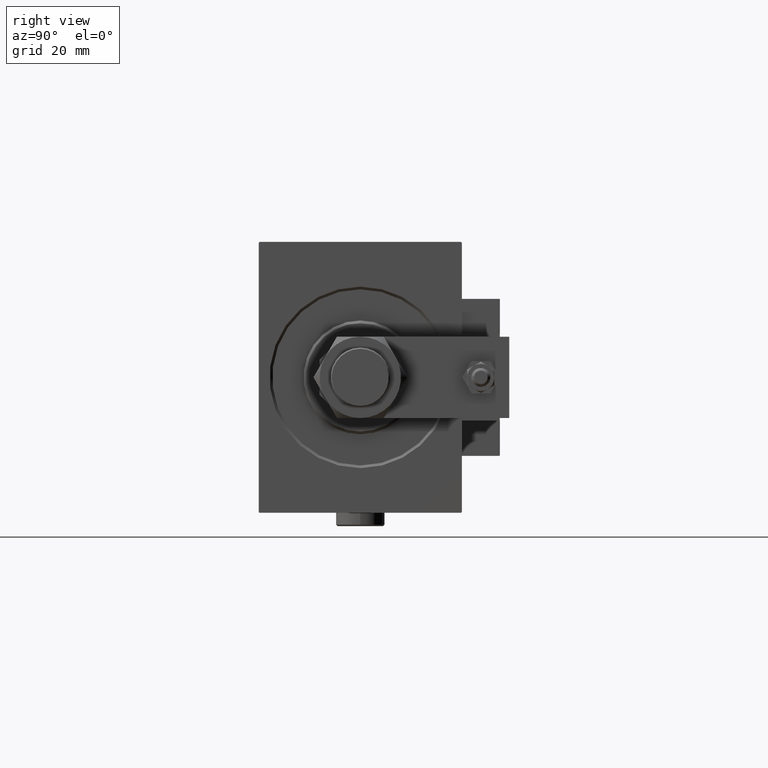
[diagram: clean part render]
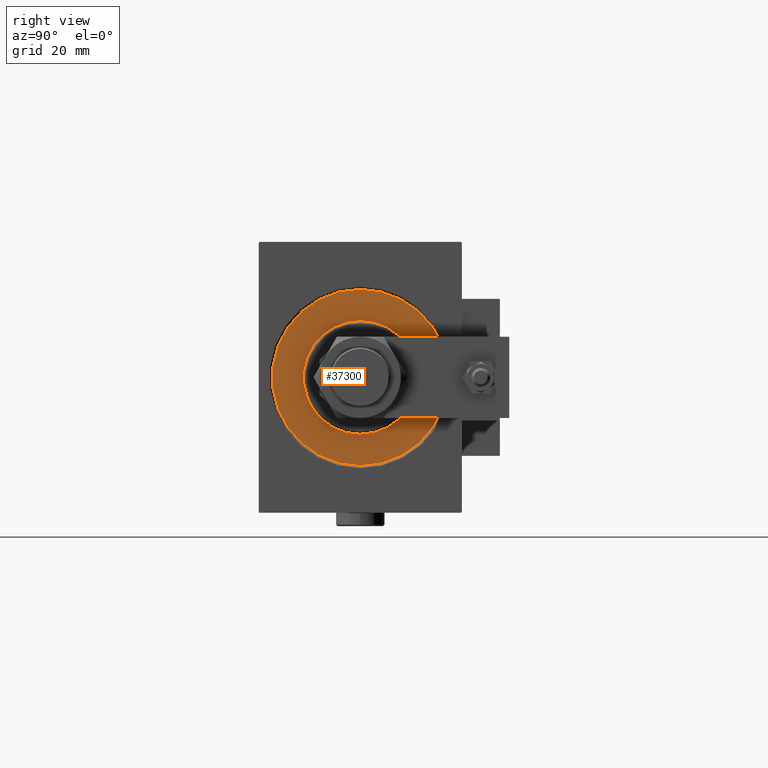
[diagram: same view with one face highlighted and labeled with its STEP entity id]
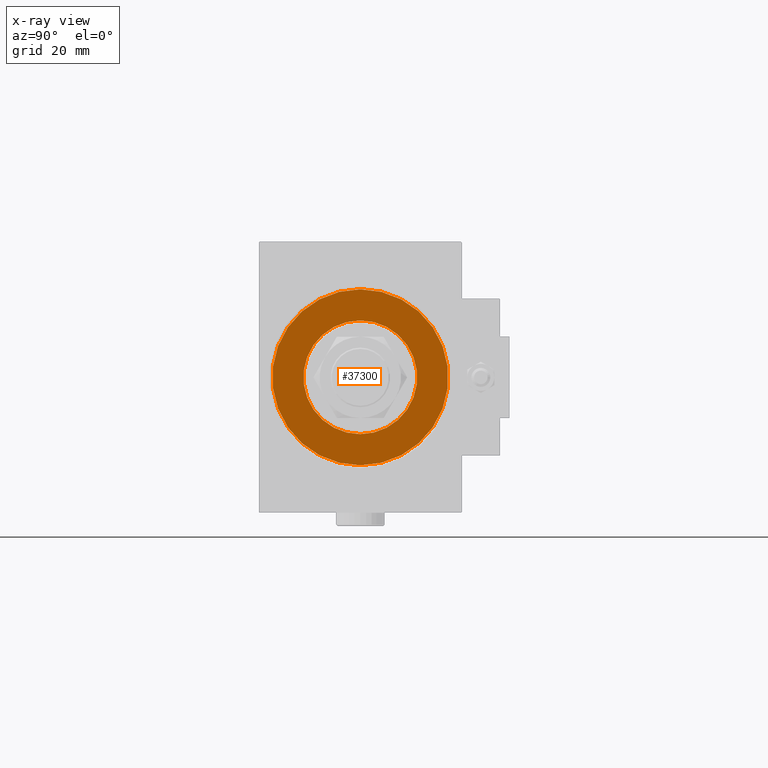
[diagram: x-ray of the same camera — body ghosted, the highlighted face saturated]
A machine part, right view. The second image highlights one B-rep face of the part: STEP entity #37300.
The next image is the same camera in x-ray: the body ghosted, the highlighted face saturated — about 0% of this face is hidden behind the body in this view.
In plain terms, the highlighted planar face has unit normal (1, 0, 0).
Its self-contained STEP definition (entity closure, byte-faithful):
#2308 = CARTESIAN_POINT ( 'NONE',  ( 0.000000000000000000, 0.000000000000000000, 0.000000000000000000 ) ) ;
#4031 = CARTESIAN_POINT ( 'NONE',  ( 0.000000000000000000, 0.000000000000000000, 0.000000000000000000 ) ) ;
#5400 = EDGE_CURVE ( 'NONE', #41885, #14696, #14924, .T. ) ;
#6509 = CARTESIAN_POINT ( 'NONE',  ( 0.000000000000000000, 0.000000000000000000, 0.000000000000000000 ) ) ;
#6594 = FACE_OUTER_BOUND ( 'NONE', #24417, .T. ) ;
#7946 = CIRCLE ( 'NONE', #39621, 21.00000000000000000 ) ;
#7979 = DIRECTION ( 'NONE',  ( 1.000000000000000000, -0.000000000000000000, 0.000000000000000000 ) ) ;
#8578 = AXIS2_PLACEMENT_3D ( 'NONE', #2308, #47313, #18909 ) ;
#8918 = ORIENTED_EDGE ( 'NONE', *, *, #5400, .T. ) ;
#13216 = AXIS2_PLACEMENT_3D ( 'NONE', #6509, #50454, #30629 ) ;
#14696 = VERTEX_POINT ( 'NONE', #35095 ) ;
#14924 = CIRCLE ( 'NONE', #13216, 32.50000000000000000 ) ;
#15397 = DIRECTION ( 'NONE',  ( 0.000000000000000000, 0.000000000000000000, -1.000000000000000000 ) ) ;
#18909 = DIRECTION ( 'NONE',  ( 0.000000000000000000, 0.000000000000000000, -1.000000000000000000 ) ) ;
#20363 = DIRECTION ( 'NONE',  ( 1.000000000000000000, -0.000000000000000000, 0.000000000000000000 ) ) ;
#20644 = EDGE_CURVE ( 'NONE', #41666, #39359, #7946, .T. ) ;
#20688 = CARTESIAN_POINT ( 'NONE',  ( 0.000000000000000000, 0.000000000000000000, 21.00000000000000000 ) ) ;
#22918 = CARTESIAN_POINT ( 'NONE',  ( 0.000000000000000000, 0.000000000000000000, 0.000000000000000000 ) ) ;
#23811 = DIRECTION ( 'NONE',  ( 0.000000000000000000, 0.000000000000000000, -1.000000000000000000 ) ) ;
#24417 = EDGE_LOOP ( 'NONE', ( #8918, #25741 ) ) ;
#25741 = ORIENTED_EDGE ( 'NONE', *, *, #31758, .T. ) ;
#30282 = CARTESIAN_POINT ( 'NONE',  ( 0.000000000000000000, 2.571758278209441661E-15, -21.00000000000000000 ) ) ;
#30629 = DIRECTION ( 'NONE',  ( 0.000000000000000000, 0.000000000000000000, -1.000000000000000000 ) ) ;
#31245 = PLANE ( 'NONE',  #8578 ) ;
#31361 = CIRCLE ( 'NONE', #32234, 32.50000000000000000 ) ;
#31758 = EDGE_CURVE ( 'NONE', #14696, #41885, #31361, .T. ) ;
#32234 = AXIS2_PLACEMENT_3D ( 'NONE', #22918, #35757, #15397 ) ;
#32695 = DIRECTION ( 'NONE',  ( 0.000000000000000000, 0.000000000000000000, -1.000000000000000000 ) ) ;
#35095 = CARTESIAN_POINT ( 'NONE',  ( 0.000000000000000000, 3.980102097228898626E-15, 32.50000000000000000 ) ) ;
#35757 = DIRECTION ( 'NONE',  ( 1.000000000000000000, 0.000000000000000000, 0.000000000000000000 ) ) ;
#36054 = AXIS2_PLACEMENT_3D ( 'NONE', #39612, #7979, #23811 ) ;
#36794 = EDGE_LOOP ( 'NONE', ( #45990, #45832 ) ) ;
#37300 = ADVANCED_FACE ( 'NONE', ( #6594, #39540 ), #31245, .T. ) ;
#39359 = VERTEX_POINT ( 'NONE', #20688 ) ;
#39540 = FACE_BOUND ( 'NONE', #36794, .T. ) ;
#39612 = CARTESIAN_POINT ( 'NONE',  ( 0.000000000000000000, 0.000000000000000000, 0.000000000000000000 ) ) ;
#39621 = AXIS2_PLACEMENT_3D ( 'NONE', #4031, #20363, #32695 ) ;
#40053 = EDGE_CURVE ( 'NONE', #39359, #41666, #44620, .T. ) ;
#41666 = VERTEX_POINT ( 'NONE', #30282 ) ;
#41885 = VERTEX_POINT ( 'NONE', #50034 ) ;
#44620 = CIRCLE ( 'NONE', #36054, 21.00000000000000000 ) ;
#45832 = ORIENTED_EDGE ( 'NONE', *, *, #20644, .F. ) ;
#45990 = ORIENTED_EDGE ( 'NONE', *, *, #40053, .F. ) ;
#47313 = DIRECTION ( 'NONE',  ( 1.000000000000000000, 0.000000000000000000, 0.000000000000000000 ) ) ;
#50034 = CARTESIAN_POINT ( 'NONE',  ( 0.000000000000000000, 0.000000000000000000, -32.50000000000000000 ) ) ;
#50454 = DIRECTION ( 'NONE',  ( 1.000000000000000000, 0.000000000000000000, 0.000000000000000000 ) ) ;